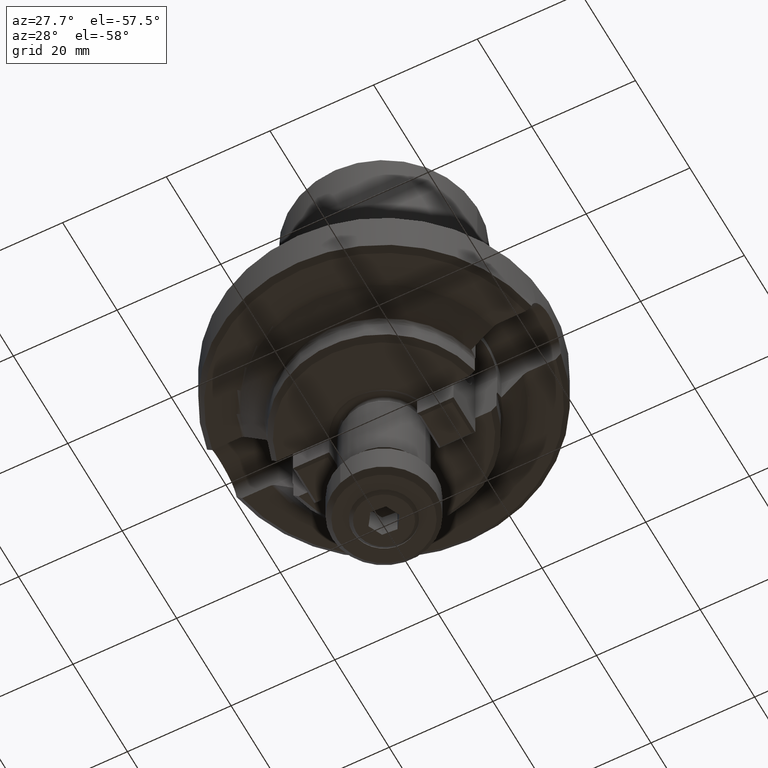
[diagram: clean part render]
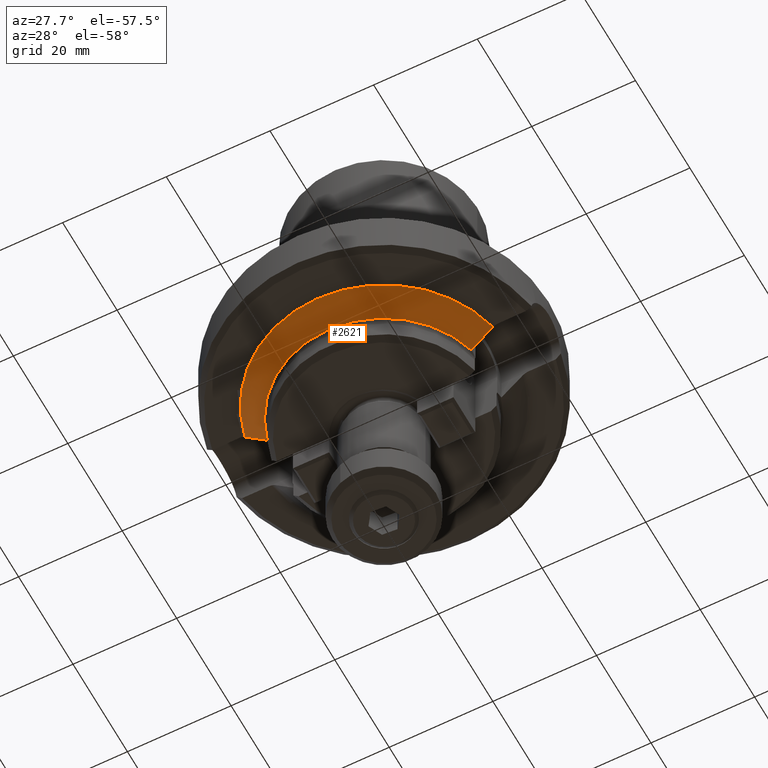
[diagram: same view with one face highlighted and labeled with its STEP entity id]
A machine part, auxiliary view. The second image highlights one B-rep face of the part: STEP entity #2621.
In plain terms, the highlighted conical surface has half-angle 45 deg.
Its self-contained STEP definition (entity closure, byte-faithful):
#1307=EDGE_CURVE('NONE',#2887,#1489,#3543,.T.);
#1489=VERTEX_POINT('NONE',#3742);
#1559=EDGE_CURVE('NONE',#1489,#3197,#3819,.T.);
#1903=VERTEX_POINT('NONE',#4201);
#2007=VERTEX_POINT('NONE',#4318);
#2133=EDGE_CURVE('NONE',#2887,#1903,#4462,.T.);
#2255=EDGE_CURVE('NONE',#2007,#2299,#4596,.T.);
#2299=VERTEX_POINT('NONE',#4644);
#2621=ADVANCED_FACE('NONE',(#5010),#5011,.T.);
#2887=VERTEX_POINT('NONE',#5304);
#2903=EDGE_CURVE('NONE',#2007,#1903,#5321,.T.);
#3197=VERTEX_POINT('NONE',#5648);
#3275=EDGE_CURVE('NONE',#2299,#3197,#5735,.T.);
#3543=B_SPLINE_CURVE_WITH_KNOTS('',3,(#6098,#6099,#6100,#6101),.UNSPECIFIED.,.F.,.F.,(4,4),(0.00820274533660313,0.0140341327768121),.UNSPECIFIED.);
#3742=CARTESIAN_POINT('',(23.9369176811396,-5.5,-10.4393398282202));
#3819=CIRCLE('',#6593,24.5606601717799);
#4201=CARTESIAN_POINT('',(19.75,-5.26346963641554,-14.5606601717798));
#4318=CARTESIAN_POINT('',(-19.75,-5.26346963641554,-14.5606601717798));
#4462=B_SPLINE_CURVE_WITH_KNOTS('',3,(#7841,#7842,#7843,#7844),.UNSPECIFIED.,.F.,.F.,(4,4),(0.00815457999383522,0.00839709993051109),.UNSPECIFIED.);
#4596=B_SPLINE_CURVE_WITH_KNOTS('',3,(#8166,#8167,#8168,#8169),.UNSPECIFIED.,.F.,.F.,(4,4),(0.00639917826323549,0.00664201536474759),.UNSPECIFIED.);
#4644=CARTESIAN_POINT('',(-19.75,-5.5,-14.4984756664291));
#5010=FACE_OUTER_BOUND('',#8832,.T.);
#5011=CONICAL_SURFACE('',#8833,20.0,0.785398163397452);
#5304=CARTESIAN_POINT('',(19.75,-5.5,-14.4984756664291));
#5321=CIRCLE('',#9401,20.4393398282202);
#5648=CARTESIAN_POINT('',(-23.9369176811396,-5.5,-10.4393398282202));
#5735=B_SPLINE_CURVE_WITH_KNOTS('',3,(#10081,#10082,#10083,#10084),.UNSPECIFIED.,.F.,.F.,(4,4),(0.00587628072357477,0.0117077671854502),.UNSPECIFIED.);
#6098=CARTESIAN_POINT('',(19.75,-5.5,-14.4984756664291));
#6099=CARTESIAN_POINT('',(21.1499076777789,-5.5,-13.1498844013952));
#6100=CARTESIAN_POINT('',(22.544844142079,-5.5,-11.7960602696713));
#6101=CARTESIAN_POINT('',(23.9369176811396,-5.5,-10.4393398282202));
#6593=AXIS2_PLACEMENT_3D('',#10699,#10700,#10701);
#7841=CARTESIAN_POINT('',(19.75,-5.5,-14.4984756664291));
#7842=CARTESIAN_POINT('',(19.75,-5.42131192544251,-14.5195855313848));
#7843=CARTESIAN_POINT('',(19.75,-5.34246956130433,-14.5403163784174));
#7844=CARTESIAN_POINT('',(19.75,-5.26346963641554,-14.5606601717798));
#8166=CARTESIAN_POINT('',(-19.75,-5.26346963641554,-14.5606601717798));
#8167=CARTESIAN_POINT('',(-19.75,-5.34246956130433,-14.5403163784174));
#8168=CARTESIAN_POINT('',(-19.75,-5.42131192544251,-14.5195855313848));
#8169=CARTESIAN_POINT('',(-19.75,-5.5,-14.4984756664291));
#8832=EDGE_LOOP('',(#12158,#12159,#12160,#12161,#12162,#12163));
#8833=AXIS2_PLACEMENT_3D('',#12164,#12165,#12166);
#9401=AXIS2_PLACEMENT_3D('',#12514,#12515,#12516);
#10081=CARTESIAN_POINT('',(-19.75,-5.5,-14.4984756664291));
#10082=CARTESIAN_POINT('',(-21.1499143052229,-5.5,-13.1498780168935));
#10083=CARTESIAN_POINT('',(-22.5448323334882,-5.5,-11.796071778371));
#10084=CARTESIAN_POINT('',(-23.9369176811396,-5.5,-10.4393398282202));
#10699=CARTESIAN_POINT('',(0.0,0.0,-10.4393398282202));
#10700=DIRECTION('',(0.0,0.0,-1.0));
#10701=DIRECTION('',(1.0,0.0,0.0));
#12158=ORIENTED_EDGE('',*,*,#3275,.F.);
#12159=ORIENTED_EDGE('',*,*,#2255,.F.);
#12160=ORIENTED_EDGE('',*,*,#2903,.T.);
#12161=ORIENTED_EDGE('',*,*,#2133,.F.);
#12162=ORIENTED_EDGE('',*,*,#1307,.T.);
#12163=ORIENTED_EDGE('',*,*,#1559,.T.);
#12164=CARTESIAN_POINT('',(0.0,0.0,-15.0));
#12165=DIRECTION('',(-0.0,-0.0,1.0));
#12166=DIRECTION('',(1.0,0.0,0.0));
#12514=CARTESIAN_POINT('',(0.0,0.0,-14.5606601717799));
#12515=DIRECTION('',(0.0,0.0,1.0));
#12516=DIRECTION('',(1.0,0.0,0.0));